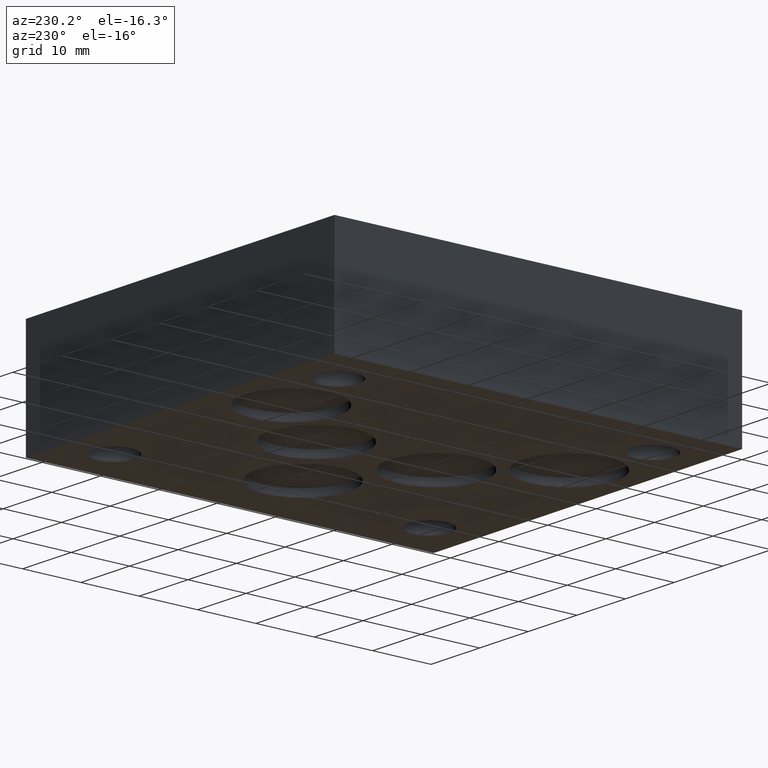
[diagram: clean part render]
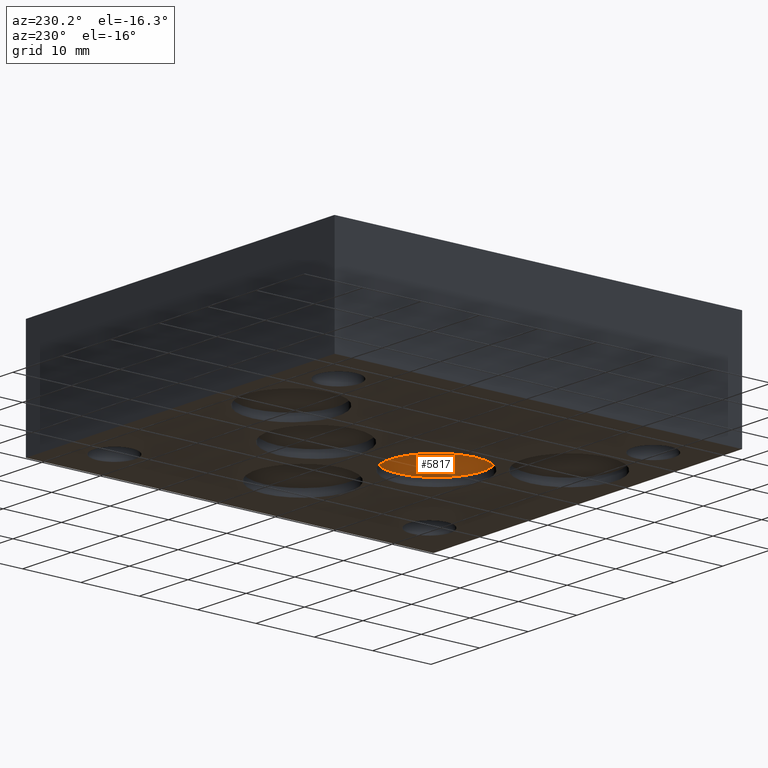
[diagram: same view with one face highlighted and labeled with its STEP entity id]
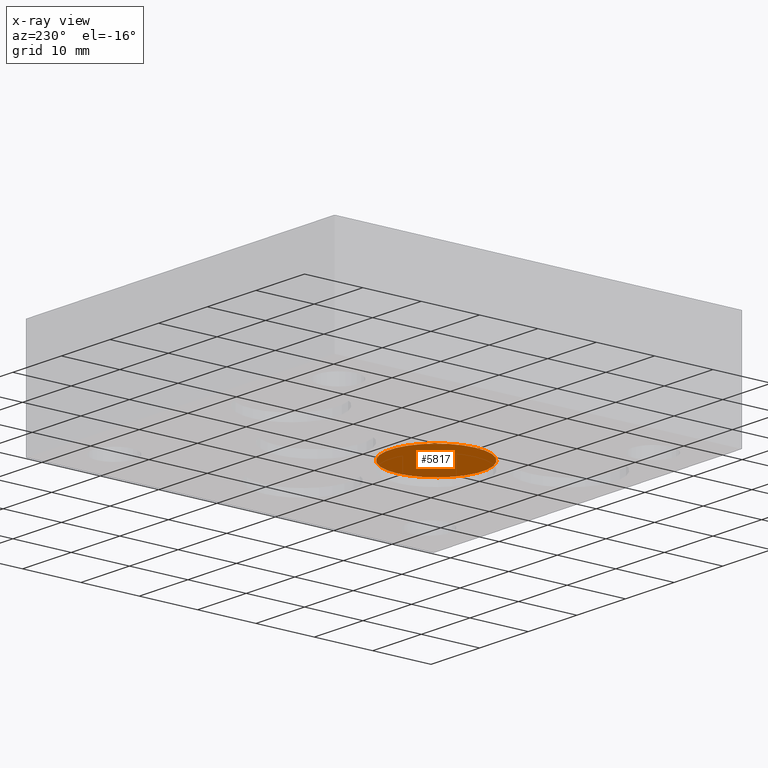
[diagram: x-ray of the same camera — body ghosted, the highlighted face saturated]
A machine part, auxiliary view. The second image highlights one B-rep face of the part: STEP entity #5817.
The next image is the same camera in x-ray: the body ghosted, the highlighted face saturated — about 0% of this face is hidden behind the body in this view.
In plain terms, the highlighted planar face has unit normal (0, 0, -1).
Its self-contained STEP definition (entity closure, byte-faithful):
#16=CIRCLE('',#6050,7.9375);
#17=CIRCLE('',#6051,7.9375);
#288=PLANE('',#6052);
#570=FACE_OUTER_BOUND('',#883,.T.);
#883=EDGE_LOOP('',(#5110,#5111));
#2793=VERTEX_POINT('',#9683);
#2794=VERTEX_POINT('',#9685);
#3575=EDGE_CURVE('',#2794,#2793,#16,.T.);
#3576=EDGE_CURVE('',#2793,#2794,#17,.T.);
#5110=ORIENTED_EDGE('',*,*,#3575,.T.);
#5111=ORIENTED_EDGE('',*,*,#3576,.T.);
#5817=ADVANCED_FACE('',(#570),#288,.T.);
#6050=AXIS2_PLACEMENT_3D('',#9686,#7101,#7102);
#6051=AXIS2_PLACEMENT_3D('',#9687,#7103,#7104);
#6052=AXIS2_PLACEMENT_3D('',#9688,#7105,#7106);
#7101=DIRECTION('center_axis',(0.,0.,-1.));
#7102=DIRECTION('ref_axis',(1.,0.,0.));
#7103=DIRECTION('center_axis',(0.,0.,-1.));
#7104=DIRECTION('ref_axis',(1.,0.,0.));
#7105=DIRECTION('center_axis',(0.,0.,-1.));
#7106=DIRECTION('ref_axis',(1.,0.,0.));
#9683=CARTESIAN_POINT('',(25.4381,24.6126,1.3208));
#9685=CARTESIAN_POINT('',(41.3131,24.6126,1.3208));
#9686=CARTESIAN_POINT('Origin',(33.3756,24.6126,1.3208));
#9687=CARTESIAN_POINT('Origin',(33.3756,24.6126,1.3208));
#9688=CARTESIAN_POINT('Origin',(33.3756,24.6126,1.3208));